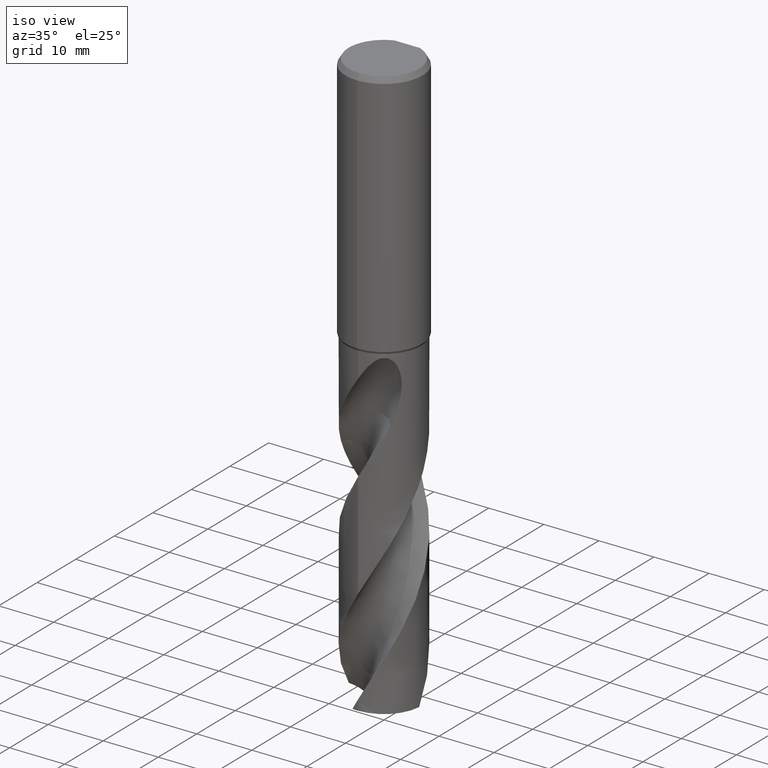
[diagram: clean part render]
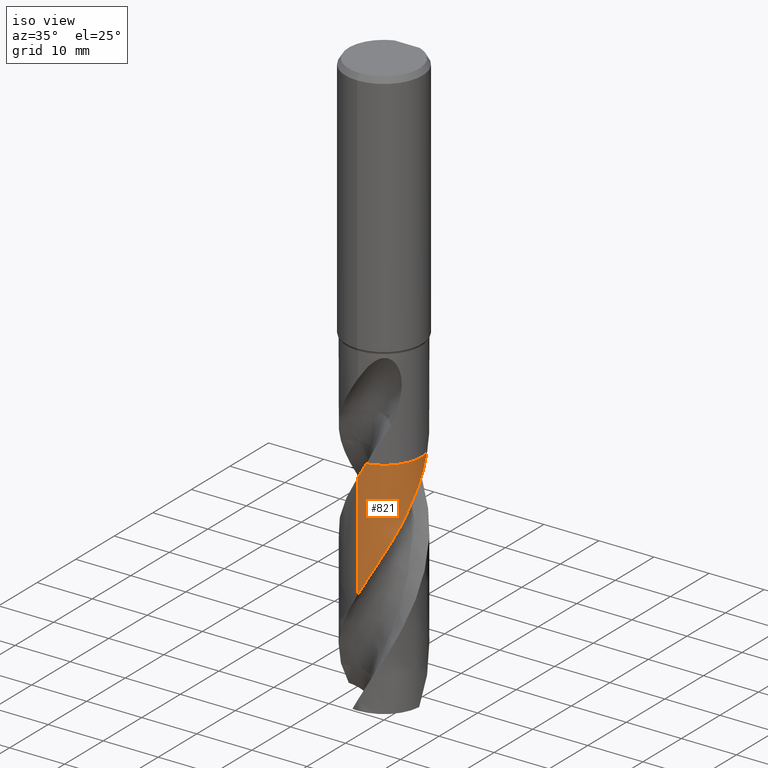
[diagram: same view with one face highlighted and labeled with its STEP entity id]
A machine part, iso view. The second image highlights one B-rep face of the part: STEP entity #821.
In plain terms, the highlighted conical surface has half-angle 0 deg.
Its self-contained STEP definition (entity closure, byte-faithful):
#371=EDGE_CURVE('',#555,#721,#945,.T.);
#373=EDGE_CURVE('',#453,#487,#947,.T.);
#375=VERTEX_POINT('',#949);
#445=EDGE_CURVE('',#555,#507,#1024,.T.);
#453=VERTEX_POINT('',#1033);
#459=EDGE_CURVE('',#487,#721,#1039,.T.);
#487=VERTEX_POINT('',#1070);
#507=VERTEX_POINT('',#1091);
#555=VERTEX_POINT('',#1144);
#565=EDGE_CURVE('',#507,#375,#1154,.T.);
#675=EDGE_CURVE('',#375,#453,#1277,.T.);
#721=VERTEX_POINT('',#1324);
#821=ADVANCED_FACE('',(#1433),#1434,.T.);
#945=LINE('',#2388,#2389);
#947=B_SPLINE_CURVE_WITH_KNOTS('',3,(#2392,#2393,#2394,#2395),.UNSPECIFIED.,.F.,.F.,(4,4),(0.0,0.0119035290969914),.UNSPECIFIED.);
#949=CARTESIAN_POINT('',(6.45462443042287,1.97458184742701,-63.7));
#1024=B_SPLINE_CURVE_WITH_KNOTS('',3,(#3171,#3172,#3173,#3174,#3175,#3176,#3177,#3178,#3179,#3180,#3181,#3182,#3183,#3184,#3185,#3186,#3187,#3188,#3189,#3190,#3191,#3192,#3193,#3194,#3195,#3196,#3197,#3198,#3199,#3200,#3201,#3202,#3203,#3204,#3205,#3206,#3207,#3208,#3209,#3210,#3211,#3212,#3213,#3214,#3215,#3216,#3217,#3218,#3219,#3220,#3221,#3222,#3223,#3224,#3225,#3226,#3227,#3228,#3229,#3230),.UNSPECIFIED.,.F.,.F.,(4,2,2,2,2,2,2,2,2,2,2,2,2,2,2,2,2,2,2,2,2,2,2,2,2,2,2,2,2,4),(0.0,3.60947638012928,5.22387891546039,7.83435643205009,8.17908131208942,9.89349308565215,10.8672772931963,12.1679495268203,13.9411089166971,14.7989226658205,15.6114292391883,18.263037507155,19.0985965455381,22.2092826676569,22.5930809618711,24.3957716360425,25.2967523692575,27.0960511795322,28.8321054213813,30.6303492332926,32.4324381064384,34.2304187576812,35.8634372739633,37.2905048595009,39.137368023913,41.1752914230166,44.2429666932759,45.7739786932458,45.8694368250851,47.3031313965556),.UNSPECIFIED.);
#1033=CARTESIAN_POINT('',(1.4230901023323,-6.59817888289215,-63.7));
#1039=B_SPLINE_CURVE_WITH_KNOTS('',3,(#3709,#3710,#3711,#3712,#3713,#3714,#3715,#3716,#3717,#3718,#3719,#3720,#3721,#3722,#3723,#3724,#3725,#3726,#3727,#3728,#3729,#3730,#3731,#3732,#3733,#3734,#3735,#3736,#3737,#3738,#3739,#3740,#3741,#3742,#3743,#3744,#3745,#3746,#3747,#3748,#3749,#3750),.UNSPECIFIED.,.F.,.F.,(4,2,2,2,2,2,2,2,2,2,2,2,2,2,2,2,2,2,2,2,4),(0.0,2.60841472702699,3.91148099768903,6.51470226145312,7.16184843786945,17.6293289157606,17.9528230178958,28.4182262036309,29.0104600185651,31.308136670322,32.3180311416646,32.4358092553111,34.3097998625887,35.1323884714177,36.673606417008,39.3711563707173,39.8769049942986,41.7756210787432,42.4878392098531,43.734077087564,47.477471288854),.UNSPECIFIED.);
#1070=CARTESIAN_POINT('',(1.42025230153988,-6.59879031150665,-63.7049999999999));
#1091=CARTESIAN_POINT('',(6.45547001148219,1.97181568766404,-63.705));
#1144=CARTESIAN_POINT('',(6.6312709612606E-015,-6.74995320003243,-85.4285961350601));
#1154=B_SPLINE_CURVE_WITH_KNOTS('',3,(#5048,#5049,#5050,#5051),.UNSPECIFIED.,.F.,.F.,(4,4),(0.0,0.0149791026531386),.UNSPECIFIED.);
#1277=CIRCLE('',#6251,6.7499);
#1324=CARTESIAN_POINT('',(1.74628676601292E-015,-6.74990605186962,-66.1717772725898));
#1433=FACE_OUTER_BOUND('',#7484,.T.);
#1434=CONICAL_SURFACE('',#7485,6.74995,2.44838792626987E-006);
#2388=CARTESIAN_POINT('',(8.28043654841439E-016,-6.74995,-84.1216004593516));
#2389=VECTOR('',#7804,1.0);
#2392=CARTESIAN_POINT('',(1.42309010233229,-6.59817888289215,-63.7));
#2393=CARTESIAN_POINT('',(1.42114264073355,-6.59859891849351,-63.7034314343567));
#2394=CARTESIAN_POINT('',(1.41919500315467,-6.59901808974742,-63.706862874486));
#2395=CARTESIAN_POINT('',(1.41724719016299,-6.59943639655923,-63.7102943206111));
#3171=CARTESIAN_POINT('',(-6.73217678604159,0.490199675114779,-104.543200918703));
#3172=CARTESIAN_POINT('',(-6.77591349302624,-0.110495249516589,-103.501642571771));
#3173=CARTESIAN_POINT('',(-6.73911770138569,-0.715002914475834,-102.473749107705));
#3174=CARTESIAN_POINT('',(-6.56988421390444,-1.57223468812874,-100.968217285673));
#3175=CARTESIAN_POINT('',(-6.5018032177321,-1.83350917781177,-100.501550692351));
#3176=CARTESIAN_POINT('',(-6.28310469756061,-2.50506679131565,-99.2839523053824));
#3177=CARTESIAN_POINT('',(-6.10812100000593,-2.9057085249275,-98.5366643023696));
#3178=CARTESIAN_POINT('',(-5.86787903925299,-3.33670224519554,-97.6847906143454));
#3179=CARTESIAN_POINT('',(-5.83922857782824,-3.38659095572018,-97.5853930418284));
#3180=CARTESIAN_POINT('',(-5.66405446878404,-3.68277333240755,-96.9914488029463));
#3181=CARTESIAN_POINT('',(-5.50250040595277,-3.92009858209985,-96.4984491887991));
#3182=CARTESIAN_POINT('',(-5.22590883322026,-4.27535793301194,-95.7237107163075));
#3183=CARTESIAN_POINT('',(-5.12113717288507,-4.40030637603335,-95.4432882114071));
#3184=CARTESIAN_POINT('',(-4.86624868325197,-4.68285762790787,-94.7875549633473));
#3185=CARTESIAN_POINT('',(-4.71288743182514,-4.83716286591342,-94.4117708578196));
#3186=CARTESIAN_POINT('',(-4.33344415933726,-5.18375160024206,-93.5256788777785));
#3187=CARTESIAN_POINT('',(-4.10151142542232,-5.36915319832257,-93.0161844775529));
#3188=CARTESIAN_POINT('',(-3.74016104196402,-5.62084551397212,-92.2581106825294));
#3189=CARTESIAN_POINT('',(-3.61985236182029,-5.69906153587114,-92.0110691676658));
#3190=CARTESIAN_POINT('',(-3.38111824320559,-5.84367553854749,-91.5295278230533));
#3191=CARTESIAN_POINT('',(-3.26298069520057,-5.91045332806895,-91.2949822118041));
#3192=CARTESIAN_POINT('',(-2.75061437865124,-6.18001106628979,-90.2962018334412));
#3193=CARTESIAN_POINT('',(-2.33904482725308,-6.3472321908188,-89.5370347187399));
#3194=CARTESIAN_POINT('',(-1.78002711130126,-6.51252519576869,-88.5319263926184));
#3195=CARTESIAN_POINT('',(-1.64500953038621,-6.54792840006219,-88.2907547730897));
#3196=CARTESIAN_POINT('',(-1.00284884433537,-6.6952169641477,-87.1538580900595));
#3197=CARTESIAN_POINT('',(-0.485161129267388,-6.75247341974159,-86.266221124065));
#3198=CARTESIAN_POINT('',(0.0978895553756178,-6.74954672574092,-85.259601675032));
#3199=CARTESIAN_POINT('',(0.161866686515655,-6.74831540969886,-85.1490135242782));
#3200=CARTESIAN_POINT('',(0.52656807484856,-6.73610249935486,-84.5190431446007));
#3201=CARTESIAN_POINT('',(0.826569232442023,-6.70593255940221,-84.0014081770111));
#3202=CARTESIAN_POINT('',(1.27250672466687,-6.63062857826717,-83.2231089136043));
#3203=CARTESIAN_POINT('',(1.42015175370469,-6.60057730789036,-82.9639169595904));
#3204=CARTESIAN_POINT('',(1.85903369630515,-6.49585616190292,-82.1863177500921));
#3205=CARTESIAN_POINT('',(2.14650900280839,-6.40661911925159,-81.6669010199082));
#3206=CARTESIAN_POINT('',(2.69813695070569,-6.19403267317183,-80.6487728307638));
#3207=CARTESIAN_POINT('',(2.9619588923319,-6.07229015449112,-80.1502783442147));
#3208=CARTESIAN_POINT('',(3.48133068600959,-5.79071263323842,-79.1323917591497));
#3209=CARTESIAN_POINT('',(3.73567245383079,-5.62999317368885,-78.6132561608787));
#3210=CARTESIAN_POINT('',(4.22203681288863,-5.27511420015869,-77.5763380233617));
#3211=CARTESIAN_POINT('',(4.45327203277501,-5.08140831037905,-77.0589678041416));
#3212=CARTESIAN_POINT('',(4.88773285457087,-4.66497183137878,-76.0220666015899));
#3213=CARTESIAN_POINT('',(5.09052699009111,-4.44279913080783,-75.502949622644));
#3214=CARTESIAN_POINT('',(5.44816055095661,-3.99419802365691,-74.5147263962975));
#3215=CARTESIAN_POINT('',(5.60526594434561,-3.77055082002225,-74.045610348149));
#3216=CARTESIAN_POINT('',(5.87347522789007,-3.33477089813356,-73.1642740509736));
#3217=CARTESIAN_POINT('',(5.98758611938804,-3.12522421689303,-72.752397267406));
#3218=CARTESIAN_POINT('',(6.22324965720992,-2.63204390841346,-71.809727752947));
#3219=CARTESIAN_POINT('',(6.33705488373616,-2.34488046264903,-71.279875692997));
#3220=CARTESIAN_POINT('',(6.53436354714845,-1.72613121490212,-70.1619432486835));
#3221=CARTESIAN_POINT('',(6.61306265927261,-1.39444479553649,-69.5740630328561));
#3222=CARTESIAN_POINT('',(6.74670596440843,-0.55270961688572,-68.1047746928476));
#3223=CARTESIAN_POINT('',(6.7691868041872,-0.0392768179061009,-67.2277000446682));
#3224=CARTESIAN_POINT('',(6.71556799118746,0.726408764023085,-65.9047582402948));
#3225=CARTESIAN_POINT('',(6.6832750528844,0.979818350286913,-65.4655944093645));
#3226=CARTESIAN_POINT('',(6.63389843178677,1.24612887734285,-64.9973538907036));
#3227=CARTESIAN_POINT('',(6.63094599377692,1.26174476729602,-64.9698718759848));
#3228=CARTESIAN_POINT('',(6.58276030116092,1.51176543345102,-64.5296301574937));
#3229=CARTESIAN_POINT('',(6.52517548657886,1.74363338444582,-64.117428647319));
#3230=CARTESIAN_POINT('',(6.45541940774096,1.9719813476624,-63.7047005786555));
#3709=CARTESIAN_POINT('',(1.42141855211194,-6.59853918735496,-63.702945202817));
#3710=CARTESIAN_POINT('',(0.994650147885878,-6.69047301341297,-64.4548745357258));
#3711=CARTESIAN_POINT('',(0.560079438096758,-6.74076359662518,-65.2063741147967));
#3712=CARTESIAN_POINT('',(-0.0941131092403313,-6.75276923245044,-66.3340627742866));
#3713=CARTESIAN_POINT('',(-0.312125405082298,-6.74621075109259,-66.7091297171967));
#3714=CARTESIAN_POINT('',(-0.96368177129453,-6.69494650994095,-67.8352002313714));
#3715=CARTESIAN_POINT('',(-1.39358555799438,-6.61883345907159,-68.5840294119283));
#3716=CARTESIAN_POINT('',(-1.91745417133906,-6.47274569227653,-69.5210127845872));
#3717=CARTESIAN_POINT('',(-2.02102382084708,-6.44115904580159,-69.7075092443382));
#3718=CARTESIAN_POINT('',(-3.78581549620807,-5.85618708500031,-72.9119558365049));
#3719=CARTESIAN_POINT('',(-5.17036074969671,-4.67945008375501,-75.8219679751994));
#3720=CARTESIAN_POINT('',(-6.00695731653246,-3.07913102175048,-78.9325826157539));
#3721=CARTESIAN_POINT('',(-6.03145674718932,-3.03086061534394,-79.0258162515611));
#3722=CARTESIAN_POINT('',(-6.82908277829884,-1.41134897074121,-82.1360926621079));
#3723=CARTESIAN_POINT('',(-6.96194876478882,0.400900402886426,-85.0471974424356));
#3724=CARTESIAN_POINT('',(-6.39495922433303,2.16247106930328,-88.2349634898589));
#3725=CARTESIAN_POINT('',(-6.36252194768984,2.25612519304922,-88.4056357983915));
#3726=CARTESIAN_POINT('',(-6.19424500955671,2.70945195211258,-89.2388573519085));
#3727=CARTESIAN_POINT('',(-6.02988986458485,3.05782481653252,-89.9006347145546));
#3728=CARTESIAN_POINT('',(-5.75187758879921,3.53645498760742,-90.8542848650065));
#3729=CARTESIAN_POINT('',(-5.66152808547192,3.67936507264554,-91.1453133702464));
#3730=CARTESIAN_POINT('',(-5.55475014095494,3.83499770106336,-91.4704306968944));
#3731=CARTESIAN_POINT('',(-5.54352748323816,3.85120248515766,-91.5043868649849));
#3732=CARTESIAN_POINT('',(-5.35254782816939,4.12440033447608,-92.0786553966238));
#3733=CARTESIAN_POINT('',(-5.15518617922094,4.36857852587066,-92.6187485387626));
#3734=CARTESIAN_POINT('',(-4.84783317529448,4.69889226555698,-93.3963235523804));
#3735=CARTESIAN_POINT('',(-4.7510036420227,4.79677568489623,-93.6334526114956));
#3736=CARTESIAN_POINT('',(-4.46430802318016,5.06938358973782,-94.3150112396239));
#3737=CARTESIAN_POINT('',(-4.26738439489196,5.23622895267093,-94.7588132075716));
#3738=CARTESIAN_POINT('',(-3.70096417088394,5.66292854367287,-95.9811703230089));
#3739=CARTESIAN_POINT('',(-3.31407600850669,5.89771262756758,-96.7572778617194));
#3740=CARTESIAN_POINT('',(-2.83015728687925,6.12859274821774,-97.6808979322121));
#3741=CARTESIAN_POINT('',(-2.75308642509558,6.16359928154858,-97.8266960070414));
#3742=CARTESIAN_POINT('',(-2.38366816037412,6.32308356077175,-98.5200677341437));
#3743=CARTESIAN_POINT('',(-2.08339756184125,6.42827827155579,-99.0672145094513));
#3744=CARTESIAN_POINT('',(-1.66182051046651,6.54331000872908,-99.8201142213963));
#3745=CARTESIAN_POINT('',(-1.54599976568618,6.57163983718783,-100.025441884323));
#3746=CARTESIAN_POINT('',(-1.22558970702625,6.64107083518586,-100.590153864477));
#3747=CARTESIAN_POINT('',(-1.01983121144033,6.67576221210682,-100.949116926998));
#3748=CARTESIAN_POINT('',(-0.191091335052353,6.77629498076306,-102.388242574049));
#3749=CARTESIAN_POINT('',(0.438521723964277,6.7648579674377,-103.463849307504));
#3750=CARTESIAN_POINT('',(1.05778435860679,6.66660275182844,-104.543200918703));
#5048=CARTESIAN_POINT('',(6.45681471524517,1.96740798299401,-63.7129657938825));
#5049=CARTESIAN_POINT('',(6.45608594589443,1.96979968684128,-63.7086438685431));
#5050=CARTESIAN_POINT('',(6.45535585082946,1.97219097535173,-63.7043219377172));
#5051=CARTESIAN_POINT('',(6.45462443042286,1.97458184742703,-63.7));
#6251=AXIS2_PLACEMENT_3D('',#8115,#8116,#8117);
#7484=EDGE_LOOP('',(#8250,#8251,#8252,#8253,#8254,#8255));
#7485=AXIS2_PLACEMENT_3D('',#8256,#8257,#8258);
#7804=DIRECTION('',(-2.99831141112908E-022,2.44838792626742E-006,0.999999999997003));
#8115=CARTESIAN_POINT('',(0.0,0.0,-63.7));
#8116=DIRECTION('',(0.0,0.0,-1.0));
#8117=DIRECTION('',(0.0,1.0,0.0));
#8250=ORIENTED_EDGE('',*,*,#371,.F.);
#8251=ORIENTED_EDGE('',*,*,#445,.T.);
#8252=ORIENTED_EDGE('',*,*,#565,.T.);
#8253=ORIENTED_EDGE('',*,*,#675,.T.);
#8254=ORIENTED_EDGE('',*,*,#373,.T.);
#8255=ORIENTED_EDGE('',*,*,#459,.T.);
#8256=CARTESIAN_POINT('',(0.0,0.0,-84.1216004593516));
#8257=DIRECTION('',(0.0,-0.0,-1.0));
#8258=DIRECTION('',(0.0,1.0,0.0));